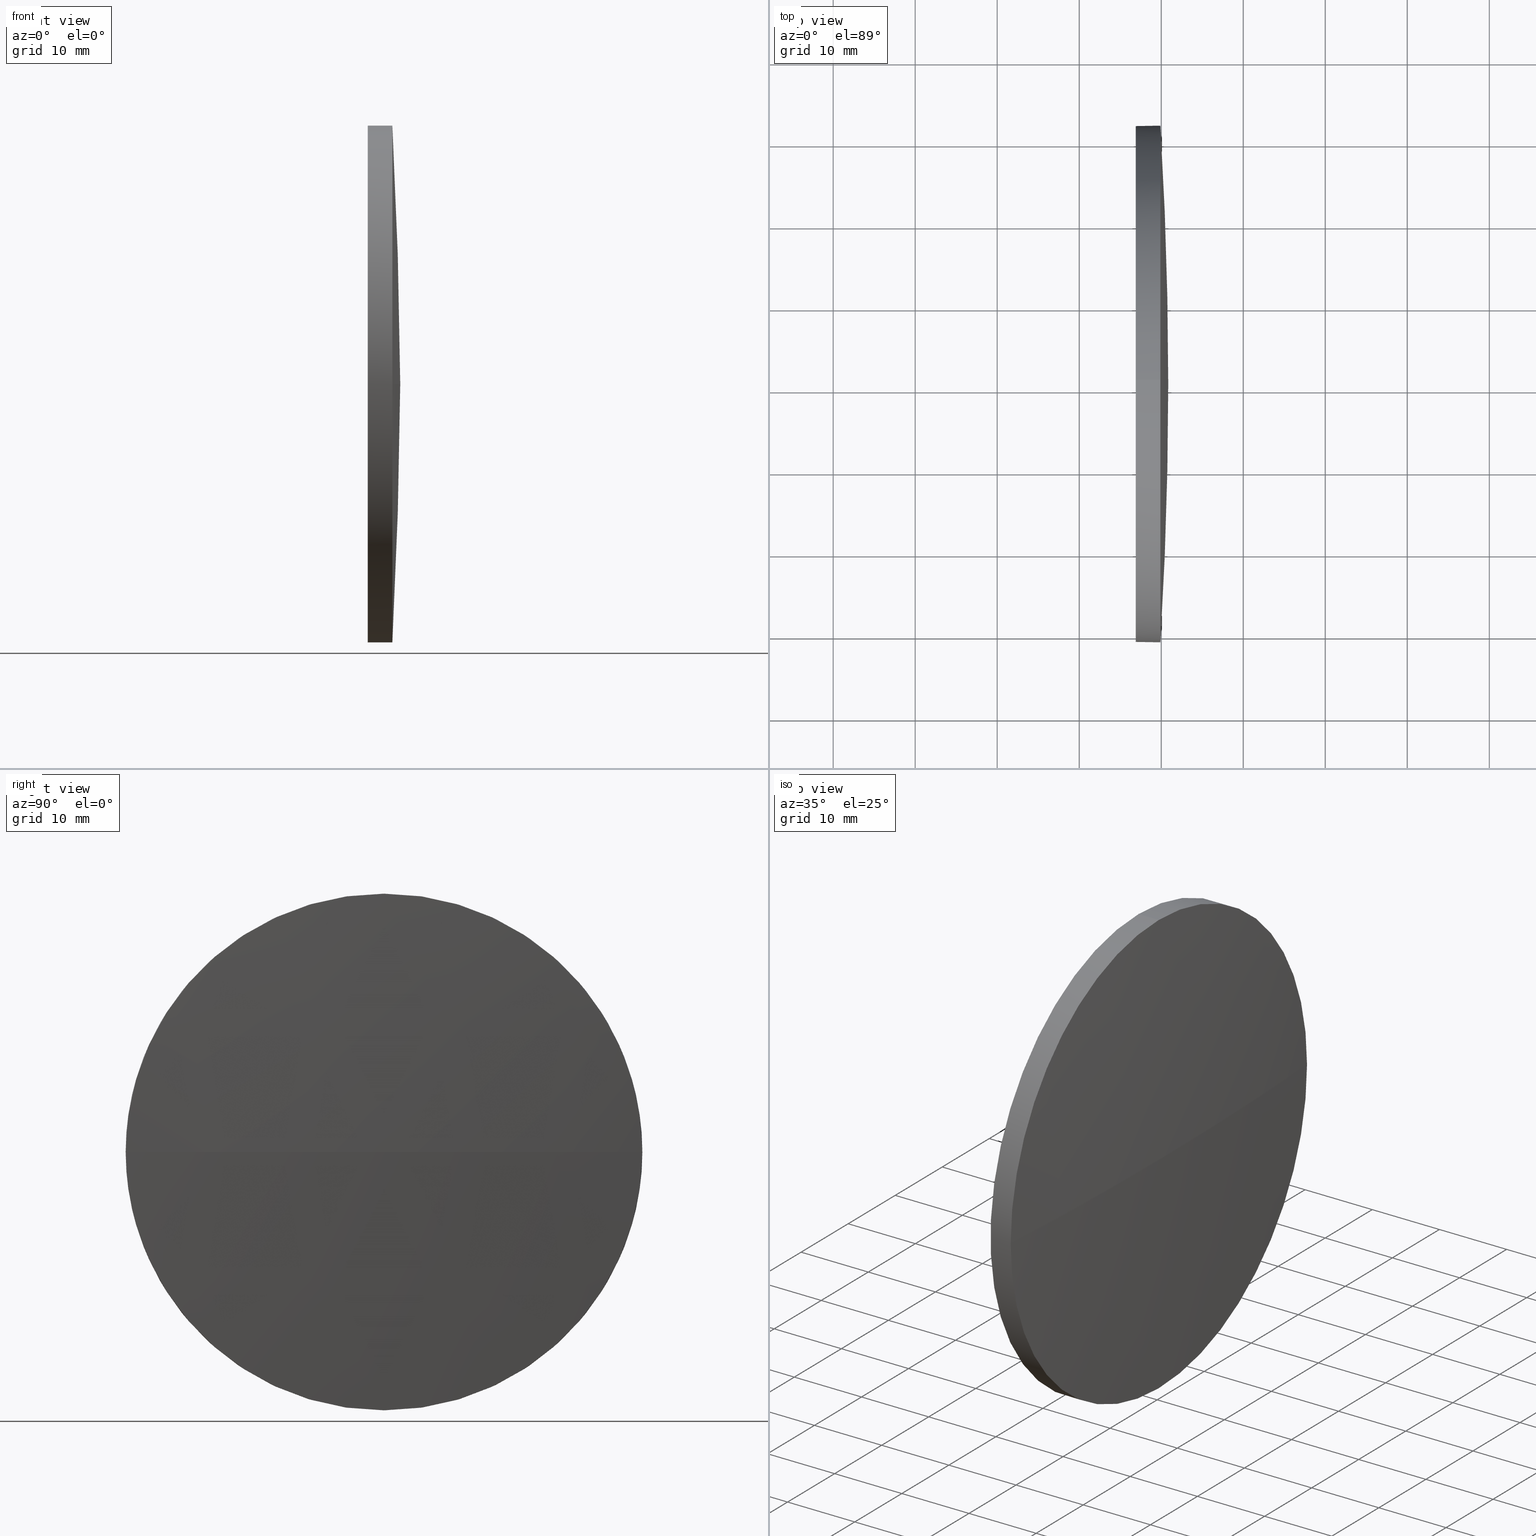
[diagram: canonical four-view strip — front | top / right | iso, engineering-drawing reading convention]
A machine part, canonical four-view strip (front | top / right | iso — engineering-drawing reading convention). The complete STEP part file that produces these views, byte-faithful:
ISO-10303-21;
HEADER;
FILE_DESCRIPTION (( 'STEP AP214' ),
    '1' );
FILE_NAME ('100249.STEP',
    '2019-05-29T01:07:22',
    ( '' ),
    ( '' ),
    'SwSTEP 2.0',
    'SolidWorks 2016',
    '' );
FILE_SCHEMA (( 'AUTOMOTIVE_DESIGN' ));
ENDSEC;

DATA;
#1 = CARTESIAN_POINT ( 'NONE',  ( 226.8933010013870400, 130.5185814569561000, 0.0000000000000000000 ) ) ;
#2 = EDGE_CURVE ( 'NONE', #35, #17, #63, .T. ) ;
#3 = CARTESIAN_POINT ( 'NONE',  ( -286.4235739986086200, 130.5185814569565500, 0.0000000000000000000 ) ) ;
#4 = ORIENTED_EDGE ( 'NONE', *, *, #170, .F. ) ;
#5 = FILL_AREA_STYLE_COLOUR ( '', #160 ) ;
#6 = ORIENTED_EDGE ( 'NONE', *, *, #168, .F. ) ;
#7 = DIRECTION ( 'NONE',  ( 1.000000000000000000, 0.0000000000000000000, 0.0000000000000000000 ) ) ;
#8 = ORIENTED_EDGE ( 'NONE', *, *, #60, .F. ) ;
#9 = PRODUCT ( '100249', '100249', '', ( #49 ) ) ;
#10 = COLOUR_RGB ( '',1.000000000000000000, 1.000000000000000000, 1.000000000000000000 ) ;
#11 = LINE ( 'NONE', #47, #14 ) ;
#12 = DIRECTION ( 'NONE',  ( -1.000000000000000000, -0.0000000000000000000, -0.0000000000000000000 ) ) ;
#13 = DIRECTION ( 'NONE',  ( 0.0000000000000000000, 0.0000000000000000000, 1.000000000000000000 ) ) ;
#14 = VECTOR ( 'NONE', #99, 1000.000000000000000 ) ;
#15 =( NAMED_UNIT ( * ) PLANE_ANGLE_UNIT ( ) SI_UNIT ( $, .RADIAN. ) );
#16 = DIRECTION ( 'NONE',  ( -1.000000000000000000, -0.0000000000000000000, -0.0000000000000000000 ) ) ;
#17 = VERTEX_POINT ( 'NONE', #80 ) ;
#18 = DIRECTION ( 'NONE',  ( -1.000000000000000000, -0.0000000000000000000, -0.0000000000000000000 ) ) ;
#19 = EDGE_CURVE ( 'NONE', #186, #34, #21, .T. ) ;
#20 = FILL_AREA_STYLE ('',( #5 ) ) ;
#21 = CIRCLE ( 'NONE', #175, 517.2768749999955800 ) ;
#22 = LINE ( 'NONE', #177, #171 ) ;
#23 = FACE_OUTER_BOUND ( 'NONE', #137, .T. ) ;
#24 = ORIENTED_EDGE ( 'NONE', *, *, #19, .T. ) ;
#25 = AXIS2_PLACEMENT_3D ( 'NONE', #64, #18, #147 ) ;
#26 = DIRECTION ( 'NONE',  ( -1.000000000000000000, -0.0000000000000000000, -0.0000000000000000000 ) ) ;
#27 = CYLINDRICAL_SURFACE ( 'NONE', #100, 31.50000000000000000 ) ;
#28 = AXIS2_PLACEMENT_3D ( 'NONE', #140, #13, #43 ) ;
#29 = STYLED_ITEM ( 'NONE', ( #122 ), #131 ) ;
#30 = CARTESIAN_POINT ( 'NONE',  ( 226.8933010013870400, 130.5185814569561000, 0.0000000000000000000 ) ) ;
#31 = ORIENTED_EDGE ( 'NONE', *, *, #2, .F. ) ;
#32 =( NAMED_UNIT ( * ) PLANE_ANGLE_UNIT ( ) SI_UNIT ( $, .RADIAN. ) );
#33 = ADVANCED_FACE ( 'NONE', ( #184 ), #72, .F. ) ;
#34 = VERTEX_POINT ( 'NONE', #92 ) ;
#35 = VERTEX_POINT ( 'NONE', #61 ) ;
#36 = AXIS2_PLACEMENT_3D ( 'NONE', #109, #121, #42 ) ;
#37 = PRODUCT_RELATED_PRODUCT_CATEGORY ( 'part', '', ( #9 ) ) ;
#38 = ORIENTED_EDGE ( 'NONE', *, *, #2, .T. ) ;
#39 = ORIENTED_EDGE ( 'NONE', *, *, #170, .T. ) ;
#40 = CIRCLE ( 'NONE', #25, 31.50000000000000000 ) ;
#41 = CARTESIAN_POINT ( 'NONE',  ( 229.8933010013870400, 130.5185814569561000, 31.50000000000000000 ) ) ;
#42 = DIRECTION ( 'NONE',  ( -1.000000000000000000, 0.0000000000000000000, 0.0000000000000000000 ) ) ;
#43 = DIRECTION ( 'NONE',  ( 0.0000000000000000000, -1.000000000000000000, 0.0000000000000000000 ) ) ;
#44 = ORIENTED_EDGE ( 'NONE', *, *, #19, .F. ) ;
#45 =( LENGTH_UNIT ( ) NAMED_UNIT ( * ) SI_UNIT ( .MILLI., .METRE. ) );
#46 = DIRECTION ( 'NONE',  ( -1.000000000000000000, -0.0000000000000000000, -0.0000000000000000000 ) ) ;
#47 = CARTESIAN_POINT ( 'NONE',  ( 218.1236667371545400, 130.5185814569561000, -31.50000000000000000 ) ) ;
#48 = CARTESIAN_POINT ( 'NONE',  ( 230.8533010013870200, 130.5185814569565300, 0.0000000000000000000 ) ) ;
#49 = PRODUCT_CONTEXT ( 'NONE', #117, 'mechanical' ) ;
#50 = ADVANCED_FACE ( 'NONE', ( #146 ), #95, .T. ) ;
#51 =( LENGTH_UNIT ( ) NAMED_UNIT ( * ) SI_UNIT ( .MILLI., .METRE. ) );
#52 = EDGE_CURVE ( 'NONE', #186, #149, #53, .T. ) ;
#53 = CIRCLE ( 'NONE', #36, 517.2768749999955800 ) ;
#54 = UNCERTAINTY_MEASURE_WITH_UNIT (LENGTH_MEASURE( 1.000000000000000100E-005 ), #45, 'distance_accuracy_value', 'NONE');
#55 = AXIS2_PLACEMENT_3D ( 'NONE', #148, #182, #128 ) ;
#56 = AXIS2_PLACEMENT_3D ( 'NONE', #123, #12, #79 ) ;
#57 = ORIENTED_EDGE ( 'NONE', *, *, #156, .T. ) ;
#58 = AXIS2_PLACEMENT_3D ( 'NONE', #66, #16, #74 ) ;
#59 = CARTESIAN_POINT ( 'NONE',  ( 226.8933010013870400, 130.5185814569561000, 0.0000000000000000000 ) ) ;
#60 = EDGE_CURVE ( 'NONE', #82, #34, #172, .T. ) ;
#61 = CARTESIAN_POINT ( 'NONE',  ( 226.8933010013870400, 130.5185814569561000, -31.50000000000000000 ) ) ;
#62 = PRODUCT_DEFINITION_CONTEXT ( 'detailed design', #153, 'design' ) ;
#63 = CIRCLE ( 'NONE', #71, 31.50000000000000000 ) ;
#64 = CARTESIAN_POINT ( 'NONE',  ( 229.8933010013870400, 130.5185814569561000, 0.0000000000000000000 ) ) ;
#65 = DIRECTION ( 'NONE',  ( 0.0000000000000000000, -1.000000000000000000, 0.0000000000000000000 ) ) ;
#66 = CARTESIAN_POINT ( 'NONE',  ( 229.8933010013870400, 130.5185814569561000, 0.0000000000000000000 ) ) ;
#67 = EDGE_LOOP ( 'NONE', ( #39, #105, #154, #157, #91 ) ) ;
#68 = STYLED_ITEM ( 'NONE', ( #151 ), #69 ) ;
#69 = MANIFOLD_SOLID_BREP ( '��ת1', #112 ) ;
#70 = CIRCLE ( 'NONE', #58, 31.50000000000000000 ) ;
#71 = AXIS2_PLACEMENT_3D ( 'NONE', #59, #26, #90 ) ;
#72 = PLANE ( 'NONE',  #152 ) ;
#73 = ORIENTED_EDGE ( 'NONE', *, *, #181, .T. ) ;
#74 = DIRECTION ( 'NONE',  ( 0.0000000000000000000, 0.0000000000000000000, 1.000000000000000000 ) ) ;
#75 = DIRECTION ( 'NONE',  ( 0.0000000000000000000, 0.0000000000000000000, 1.000000000000000000 ) ) ;
#76 = DIRECTION ( 'NONE',  ( -1.000000000000000000, -0.0000000000000000000, -0.0000000000000000000 ) ) ;
#77 = SURFACE_STYLE_USAGE ( .BOTH. , #86 ) ;
#78 = EDGE_LOOP ( 'NONE', ( #44, #183, #126, #4 ) ) ;
#79 = DIRECTION ( 'NONE',  ( 0.0000000000000000000, 0.0000000000000000000, 1.000000000000000000 ) ) ;
#80 = CARTESIAN_POINT ( 'NONE',  ( 226.8933010013870400, 130.5185814569561000, 31.50000000000000000 ) ) ;
#81 = AXIS2_PLACEMENT_3D ( 'NONE', #97, #166, #7 ) ;
#82 = VERTEX_POINT ( 'NONE', #41 ) ;
#83 =( LENGTH_UNIT ( ) NAMED_UNIT ( * ) SI_UNIT ( .MILLI., .METRE. ) );
#84 = CARTESIAN_POINT ( 'NONE',  ( 229.8933010013870400, 99.01858145695655400, 0.0000000000000000000 ) ) ;
#85 = EDGE_CURVE ( 'NONE', #82, #17, #22, .T. ) ;
#86 = SURFACE_SIDE_STYLE ('',( #174 ) ) ;
#87 =( GEOMETRIC_REPRESENTATION_CONTEXT ( 3 ) GLOBAL_UNCERTAINTY_ASSIGNED_CONTEXT ( ( #129 ) ) GLOBAL_UNIT_ASSIGNED_CONTEXT ( ( #83, #32, #130 ) ) REPRESENTATION_CONTEXT ( 'NONE', 'WORKASPACE' ) );
#88 = CIRCLE ( 'NONE', #136, 31.50000000000000000 ) ;
#89 = MECHANICAL_DESIGN_GEOMETRIC_PRESENTATION_REPRESENTATION (  '', ( #29 ), #108 ) ;
#90 = DIRECTION ( 'NONE',  ( 0.0000000000000000000, 0.0000000000000000000, 1.000000000000000000 ) ) ;
#91 = ORIENTED_EDGE ( 'NONE', *, *, #60, .T. ) ;
#92 = CARTESIAN_POINT ( 'NONE',  ( 229.8933010013870400, 162.0185814569561000, 3.857637417314109000E-015 ) ) ;
#93 = SURFACE_STYLE_USAGE ( .BOTH. , #159 ) ;
#94 = PRESENTATION_LAYER_ASSIGNMENT (  '', '', ( #68 ) ) ;
#95 = SPHERICAL_SURFACE ( 'NONE', #28, 517.2768749999955800 ) ;
#96 = CARTESIAN_POINT ( 'NONE',  ( 229.8933010013870400, 130.5185814569561000, -31.50000000000000000 ) ) ;
#97 = CARTESIAN_POINT ( 'NONE',  ( 0.0000000000000000000, 0.0000000000000000000, 0.0000000000000000000 ) ) ;
#98 = CARTESIAN_POINT ( 'NONE',  ( 229.8933010013870400, 130.5185814569561000, 0.0000000000000000000 ) ) ;
#99 = DIRECTION ( 'NONE',  ( -1.000000000000000000, -0.0000000000000000000, -0.0000000000000000000 ) ) ;
#100 = AXIS2_PLACEMENT_3D ( 'NONE', #127, #46, #179 ) ;
#101 = VERTEX_POINT ( 'NONE', #96 ) ;
#102 = APPLICATION_PROTOCOL_DEFINITION ( 'draft international standard', 'automotive_design', 1998, #153 ) ;
#103 = ADVANCED_FACE ( 'NONE', ( #173 ), #165, .T. ) ;
#104 = SURFACE_STYLE_FILL_AREA ( #143 ) ;
#105 = ORIENTED_EDGE ( 'NONE', *, *, #168, .T. ) ;
#106 = MECHANICAL_DESIGN_GEOMETRIC_PRESENTATION_REPRESENTATION (  '', ( #68 ), #116 ) ;
#107 = FILL_AREA_STYLE_COLOUR ( '', #10 ) ;
#108 =( GEOMETRIC_REPRESENTATION_CONTEXT ( 3 ) GLOBAL_UNCERTAINTY_ASSIGNED_CONTEXT ( ( #155 ) ) GLOBAL_UNIT_ASSIGNED_CONTEXT ( ( #51, #132, #114 ) ) REPRESENTATION_CONTEXT ( 'NONE', 'WORKASPACE' ) );
#109 = CARTESIAN_POINT ( 'NONE',  ( -286.4235739986086200, 130.5185814569565500, 0.0000000000000000000 ) ) ;
#110 = DIRECTION ( 'NONE',  ( 0.0000000000000000000, 0.0000000000000000000, -1.000000000000000000 ) ) ;
#111 = EDGE_LOOP ( 'NONE', ( #178, #38 ) ) ;
#112 = CLOSED_SHELL ( 'NONE', ( #169, #118, #50, #103, #33 ) ) ;
#113 = SPHERICAL_SURFACE ( 'NONE', #162, 517.2768749999955800 ) ;
#114 =( NAMED_UNIT ( * ) SI_UNIT ( $, .STERADIAN. ) SOLID_ANGLE_UNIT ( ) );
#115 = PRODUCT_DEFINITION ( 'δ֪', '', #141, #62 ) ;
#116 =( GEOMETRIC_REPRESENTATION_CONTEXT ( 3 ) GLOBAL_UNCERTAINTY_ASSIGNED_CONTEXT ( ( #54 ) ) GLOBAL_UNIT_ASSIGNED_CONTEXT ( ( #45, #15, #145 ) ) REPRESENTATION_CONTEXT ( 'NONE', 'WORKASPACE' ) );
#117 = APPLICATION_CONTEXT ( 'automotive_design' ) ;
#118 = ADVANCED_FACE ( 'NONE', ( #23 ), #113, .T. ) ;
#119 = ORIENTED_EDGE ( 'NONE', *, *, #52, .F. ) ;
#120 = DIRECTION ( 'NONE',  ( 0.0000000000000000000, -1.224646799147353200E-016, 1.000000000000000000 ) ) ;
#121 = DIRECTION ( 'NONE',  ( 0.0000000000000000000, 0.0000000000000000000, -1.000000000000000000 ) ) ;
#122 = PRESENTATION_STYLE_ASSIGNMENT (( #77 ) ) ;
#123 = CARTESIAN_POINT ( 'NONE',  ( 229.8933010013870400, 130.5185814569561000, 0.0000000000000000000 ) ) ;
#124 = AXIS2_PLACEMENT_3D ( 'NONE', #30, #125, #75 ) ;
#125 = DIRECTION ( 'NONE',  ( -1.000000000000000000, -0.0000000000000000000, -0.0000000000000000000 ) ) ;
#126 = ORIENTED_EDGE ( 'NONE', *, *, #156, .F. ) ;
#127 = CARTESIAN_POINT ( 'NONE',  ( 218.1236667371545400, 130.5185814569561000, 0.0000000000000000000 ) ) ;
#128 = DIRECTION ( 'NONE',  ( 0.0000000000000000000, 0.0000000000000000000, 1.000000000000000000 ) ) ;
#129 = UNCERTAINTY_MEASURE_WITH_UNIT (LENGTH_MEASURE( 1.000000000000000100E-005 ), #83, 'distance_accuracy_value', 'NONE');
#130 =( NAMED_UNIT ( * ) SI_UNIT ( $, .STERADIAN. ) SOLID_ANGLE_UNIT ( ) );
#131 = ADVANCED_BREP_SHAPE_REPRESENTATION ( '100249', ( #69, #81 ), #87 ) ;
#132 =( NAMED_UNIT ( * ) PLANE_ANGLE_UNIT ( ) SI_UNIT ( $, .RADIAN. ) );
#133 = APPLICATION_PROTOCOL_DEFINITION ( 'draft international standard', 'automotive_design', 1998, #117 ) ;
#134 = ORIENTED_EDGE ( 'NONE', *, *, #181, .F. ) ;
#135 = ORIENTED_EDGE ( 'NONE', *, *, #85, .T. ) ;
#136 = AXIS2_PLACEMENT_3D ( 'NONE', #98, #76, #180 ) ;
#137 = EDGE_LOOP ( 'NONE', ( #119, #24, #8, #134 ) ) ;
#138 = SHAPE_DEFINITION_REPRESENTATION ( #176, #131 ) ;
#139 = DIRECTION ( 'NONE',  ( 1.000000000000000000, 0.0000000000000000000, 0.0000000000000000000 ) ) ;
#140 = CARTESIAN_POINT ( 'NONE',  ( -286.4235739986086200, 130.5185814569565500, 0.0000000000000000000 ) ) ;
#141 = PRODUCT_DEFINITION_FORMATION_WITH_SPECIFIED_SOURCE ( '�κ�', '', #9, .NOT_KNOWN. ) ;
#142 = CIRCLE ( 'NONE', #124, 31.50000000000000000 ) ;
#143 = FILL_AREA_STYLE ('',( #107 ) ) ;
#144 = EDGE_CURVE ( 'NONE', #17, #35, #142, .T. ) ;
#145 =( NAMED_UNIT ( * ) SI_UNIT ( $, .STERADIAN. ) SOLID_ANGLE_UNIT ( ) );
#146 = FACE_OUTER_BOUND ( 'NONE', #78, .T. ) ;
#147 = DIRECTION ( 'NONE',  ( 0.0000000000000000000, 0.0000000000000000000, 1.000000000000000000 ) ) ;
#148 = CARTESIAN_POINT ( 'NONE',  ( 218.1236667371545400, 130.5185814569561000, 0.0000000000000000000 ) ) ;
#149 = VERTEX_POINT ( 'NONE', #84 ) ;
#150 = CARTESIAN_POINT ( 'NONE',  ( -286.4235739986086200, 130.5185814569565500, 0.0000000000000000000 ) ) ;
#151 = PRESENTATION_STYLE_ASSIGNMENT (( #93 ) ) ;
#152 = AXIS2_PLACEMENT_3D ( 'NONE', #1, #139, #110 ) ;
#153 = APPLICATION_CONTEXT ( 'automotive_design' ) ;
#154 = ORIENTED_EDGE ( 'NONE', *, *, #144, .F. ) ;
#155 = UNCERTAINTY_MEASURE_WITH_UNIT (LENGTH_MEASURE( 1.000000000000000100E-005 ), #51, 'distance_accuracy_value', 'NONE');
#156 = EDGE_CURVE ( 'NONE', #101, #149, #70, .T. ) ;
#157 = ORIENTED_EDGE ( 'NONE', *, *, #85, .F. ) ;
#158 = DIRECTION ( 'NONE',  ( 0.0000000000000000000, -1.000000000000000000, -1.224646799147353500E-016 ) ) ;
#159 = SURFACE_SIDE_STYLE ('',( #104 ) ) ;
#160 = COLOUR_RGB ( '',1.000000000000000000, 1.000000000000000000, 1.000000000000000000 ) ;
#161 = DIRECTION ( 'NONE',  ( -1.000000000000000000, -0.0000000000000000000, -0.0000000000000000000 ) ) ;
#162 = AXIS2_PLACEMENT_3D ( 'NONE', #150, #163, #65 ) ;
#163 = DIRECTION ( 'NONE',  ( 0.0000000000000000000, 0.0000000000000000000, 1.000000000000000000 ) ) ;
#164 = EDGE_LOOP ( 'NONE', ( #6, #57, #73, #135, #31 ) ) ;
#165 = CYLINDRICAL_SURFACE ( 'NONE', #55, 31.50000000000000000 ) ;
#166 = DIRECTION ( 'NONE',  ( 0.0000000000000000000, 0.0000000000000000000, 1.000000000000000000 ) ) ;
#167 = FACE_OUTER_BOUND ( 'NONE', #67, .T. ) ;
#168 = EDGE_CURVE ( 'NONE', #101, #35, #11, .T. ) ;
#169 = ADVANCED_FACE ( 'NONE', ( #167 ), #27, .T. ) ;
#170 = EDGE_CURVE ( 'NONE', #34, #101, #40, .T. ) ;
#171 = VECTOR ( 'NONE', #161, 1000.000000000000000 ) ;
#172 = CIRCLE ( 'NONE', #56, 31.50000000000000000 ) ;
#173 = FACE_OUTER_BOUND ( 'NONE', #164, .T. ) ;
#174 = SURFACE_STYLE_FILL_AREA ( #20 ) ;
#175 = AXIS2_PLACEMENT_3D ( 'NONE', #3, #120, #158 ) ;
#176 = PRODUCT_DEFINITION_SHAPE ( 'NONE', 'NONE',  #115 ) ;
#177 = CARTESIAN_POINT ( 'NONE',  ( 218.1236667371545400, 130.5185814569561000, 31.50000000000000000 ) ) ;
#178 = ORIENTED_EDGE ( 'NONE', *, *, #144, .T. ) ;
#179 = DIRECTION ( 'NONE',  ( 0.0000000000000000000, 0.0000000000000000000, 1.000000000000000000 ) ) ;
#180 = DIRECTION ( 'NONE',  ( 0.0000000000000000000, 0.0000000000000000000, 1.000000000000000000 ) ) ;
#181 = EDGE_CURVE ( 'NONE', #149, #82, #88, .T. ) ;
#182 = DIRECTION ( 'NONE',  ( -1.000000000000000000, -0.0000000000000000000, -0.0000000000000000000 ) ) ;
#183 = ORIENTED_EDGE ( 'NONE', *, *, #52, .T. ) ;
#184 = FACE_OUTER_BOUND ( 'NONE', #111, .T. ) ;
#185 = PRESENTATION_LAYER_ASSIGNMENT (  '', '', ( #29 ) ) ;
#186 = VERTEX_POINT ( 'NONE', #48 ) ;
ENDSEC;
END-ISO-10303-21;
